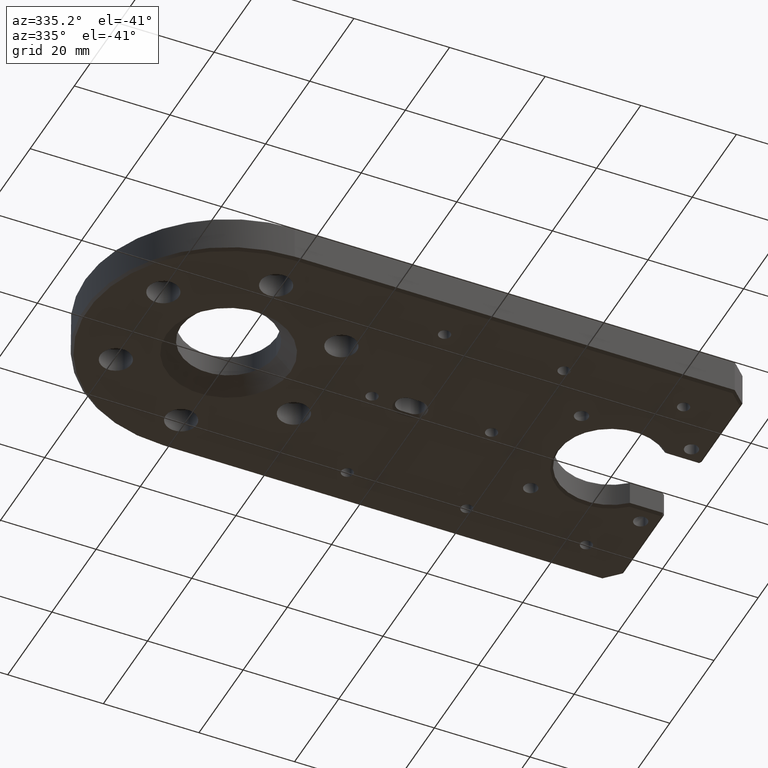
[diagram: clean part render]
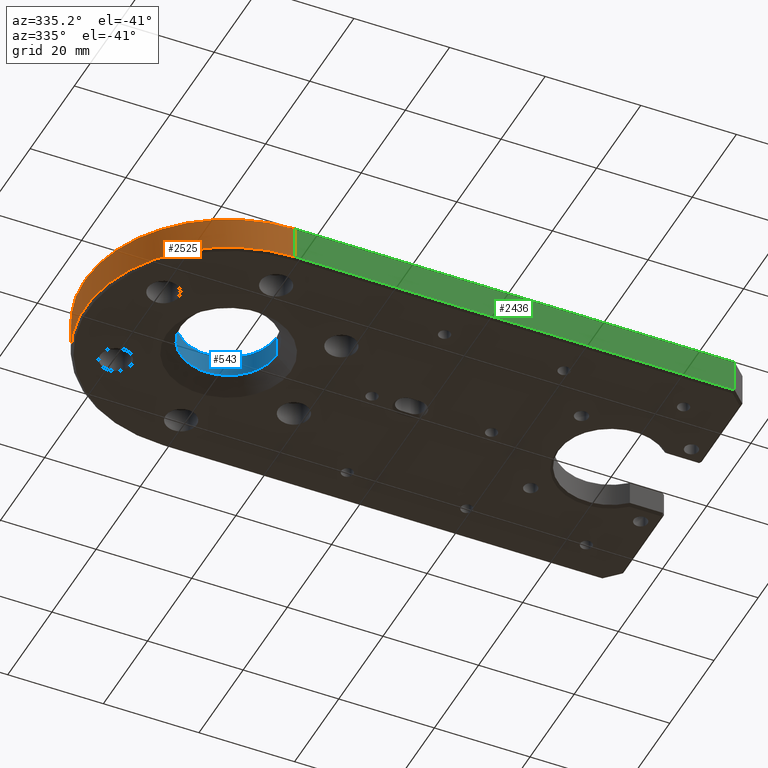
[diagram: same view with three faces highlighted in distinct colors, each labeled with its STEP entity id]
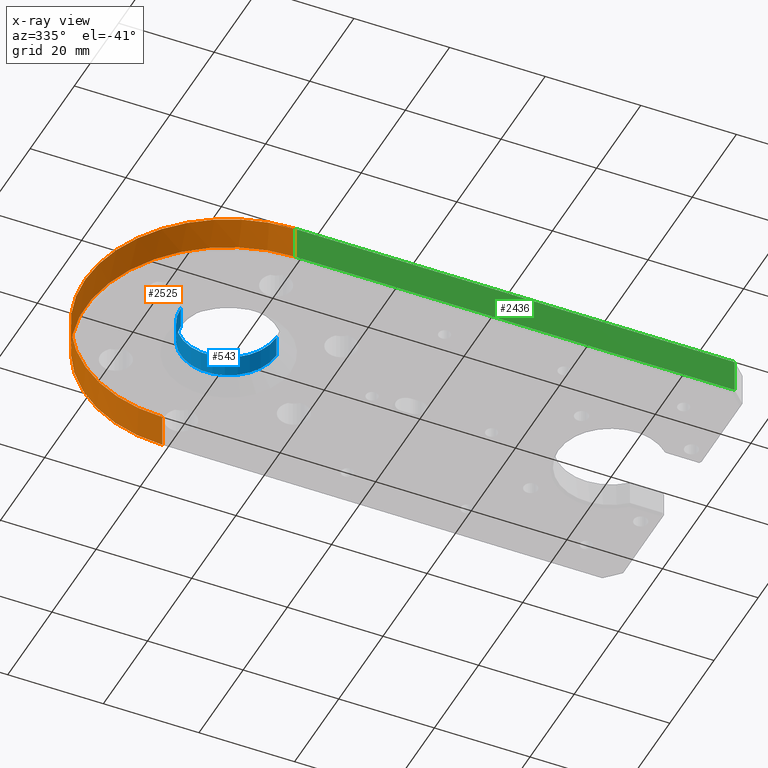
[diagram: x-ray of the same camera — body ghosted, the three highlighted faces saturated]
A machine part, auxiliary view with three faces highlighted in distinct colors.
The next image is the same camera in x-ray (body ghosted, the three faces saturated) — at least one of them is partly hidden behind the body in this view.
Their STEP definitions:

[orange] entity #2525 — the highlighted cylindrical surface (partial cylindrical patch) has radius 30 mm, axis along (0, 0, 1).
#14 = EDGE_CURVE ( 'NONE', #3818, #3821, #2484, .T. ) ;
#93 = CARTESIAN_POINT ( 'NONE',  ( -5.510910596163088767E-15, -30.00000000000000000, -8.000000000000000000 ) ) ;
#117 = CIRCLE ( 'NONE', #2047, 30.00000000000000000 ) ;
#153 = CARTESIAN_POINT ( 'NONE',  ( 0.0000000000000000000, 0.0000000000000000000, -7.500000000000013323 ) ) ;
#363 = VERTEX_POINT ( 'NONE', #2757 ) ;
#376 = DIRECTION ( 'NONE',  ( 0.0000000000000000000, 0.0000000000000000000, 1.000000000000000000 ) ) ;
#411 = CARTESIAN_POINT ( 'NONE',  ( 1.836970198721029589E-15, 30.00000000000000000, -0.4999999999999865663 ) ) ;
#646 = CYLINDRICAL_SURFACE ( 'NONE', #1932, 30.00000000000000000 ) ;
#656 = VECTOR ( 'NONE', #3798, 1000.000000000000000 ) ;
#697 = ORIENTED_EDGE ( 'NONE', *, *, #2718, .T. ) ;
#769 = ORIENTED_EDGE ( 'NONE', *, *, #14, .T. ) ;
#933 = AXIS2_PLACEMENT_3D ( 'NONE', #3032, #2061, #4070 ) ;
#1067 = AXIS2_PLACEMENT_3D ( 'NONE', #153, #1512, #2860 ) ;
#1179 = ORIENTED_EDGE ( 'NONE', *, *, #1767, .F. ) ;
#1194 = ORIENTED_EDGE ( 'NONE', *, *, #1654, .T. ) ;
#1439 = EDGE_CURVE ( 'NONE', #3821, #3797, #3876, .T. ) ;
#1512 = DIRECTION ( 'NONE',  ( -0.0000000000000000000, -0.0000000000000000000, 1.000000000000000000 ) ) ;
#1654 = EDGE_CURVE ( 'NONE', #3797, #363, #1720, .T. ) ;
#1720 = CIRCLE ( 'NONE', #933, 30.00000000000000000 ) ;
#1752 = CARTESIAN_POINT ( 'NONE',  ( -5.510910596163088767E-15, -30.00000000000000000, -7.500000000000013323 ) ) ;
#1767 = EDGE_CURVE ( 'NONE', #3818, #3831, #2429, .T. ) ;
#1932 = AXIS2_PLACEMENT_3D ( 'NONE', #2076, #376, #2009 ) ;
#1990 = DIRECTION ( 'NONE',  ( 0.0000000000000000000, 0.0000000000000000000, -1.000000000000000000 ) ) ;
#2009 = DIRECTION ( 'NONE',  ( 1.000000000000000000, 0.0000000000000000000, 0.0000000000000000000 ) ) ;
#2047 = AXIS2_PLACEMENT_3D ( 'NONE', #4040, #1990, #3335 ) ;
#2061 = DIRECTION ( 'NONE',  ( 0.0000000000000000000, 0.0000000000000000000, -1.000000000000000000 ) ) ;
#2076 = CARTESIAN_POINT ( 'NONE',  ( 0.0000000000000000000, 0.0000000000000000000, -8.000000000000000000 ) ) ;
#2100 = EDGE_LOOP ( 'NONE', ( #2514, #1194, #697, #1179, #769 ) ) ;
#2373 = CARTESIAN_POINT ( 'NONE',  ( -5.510910596163088767E-15, -30.00000000000000000, -0.4999999999999865663 ) ) ;
#2413 = CARTESIAN_POINT ( 'NONE',  ( 1.836970198721029589E-15, 30.00000000000000000, -7.500000000000013323 ) ) ;
#2429 = LINE ( 'NONE', #2742, #656 ) ;
#2484 = CIRCLE ( 'NONE', #1067, 30.00000000000000000 ) ;
#2514 = ORIENTED_EDGE ( 'NONE', *, *, #1439, .T. ) ;
#2525 = ADVANCED_FACE ( 'NONE', ( #4404 ), #646, .T. ) ;
#2718 = EDGE_CURVE ( 'NONE', #363, #3831, #117, .T. ) ;
#2742 = CARTESIAN_POINT ( 'NONE',  ( 1.836970198721029589E-15, 30.00000000000000000, -8.000000000000000000 ) ) ;
#2757 = CARTESIAN_POINT ( 'NONE',  ( -30.00000000000000000, 0.0000000000000000000, -0.4999999999999865663 ) ) ;
#2860 = DIRECTION ( 'NONE',  ( 1.000000000000000000, 0.0000000000000000000, 0.0000000000000000000 ) ) ;
#3032 = CARTESIAN_POINT ( 'NONE',  ( 0.0000000000000000000, 0.0000000000000000000, -0.4999999999999865663 ) ) ;
#3186 = DIRECTION ( 'NONE',  ( 0.0000000000000000000, 0.0000000000000000000, 1.000000000000000000 ) ) ;
#3335 = DIRECTION ( 'NONE',  ( 1.000000000000000000, 0.0000000000000000000, 0.0000000000000000000 ) ) ;
#3797 = VERTEX_POINT ( 'NONE', #2373 ) ;
#3798 = DIRECTION ( 'NONE',  ( 0.0000000000000000000, 0.0000000000000000000, 1.000000000000000000 ) ) ;
#3818 = VERTEX_POINT ( 'NONE', #2413 ) ;
#3821 = VERTEX_POINT ( 'NONE', #1752 ) ;
#3831 = VERTEX_POINT ( 'NONE', #411 ) ;
#3876 = LINE ( 'NONE', #93, #3915 ) ;
#3915 = VECTOR ( 'NONE', #3186, 1000.000000000000000 ) ;
#4040 = CARTESIAN_POINT ( 'NONE',  ( 0.0000000000000000000, 0.0000000000000000000, -0.4999999999999865663 ) ) ;
#4070 = DIRECTION ( 'NONE',  ( 1.000000000000000000, 0.0000000000000000000, 0.0000000000000000000 ) ) ;
#4404 = FACE_OUTER_BOUND ( 'NONE', #2100, .T. ) ;

[blue] entity #543 — the highlighted cylindrical surface (partial cylindrical patch) has radius 10 mm, axis along (-0, -0, 1).
#77 = VERTEX_POINT ( 'NONE', #4303 ) ;
#259 = DIRECTION ( 'NONE',  ( 1.000000000000000000, 0.0000000000000000000, 0.0000000000000000000 ) ) ;
#344 = ORIENTED_EDGE ( 'NONE', *, *, #4414, .F. ) ;
#427 = DIRECTION ( 'NONE',  ( -0.0000000000000000000, -0.0000000000000000000, 1.000000000000000000 ) ) ;
#543 = ADVANCED_FACE ( 'NONE', ( #2170 ), #2192, .F. ) ;
#740 = VECTOR ( 'NONE', #1199, 1000.000000000000000 ) ;
#839 = CARTESIAN_POINT ( 'NONE',  ( 10.00000000000000000, 0.0000000000000000000, -8.000000000000000000 ) ) ;
#867 = CARTESIAN_POINT ( 'NONE',  ( -10.00000000000000000, 1.224646799147353256E-15, -8.000000000000000000 ) ) ;
#1007 = VERTEX_POINT ( 'NONE', #4258 ) ;
#1056 = VERTEX_POINT ( 'NONE', #3924 ) ;
#1129 = AXIS2_PLACEMENT_3D ( 'NONE', #1422, #2771, #1955 ) ;
#1135 = EDGE_CURVE ( 'NONE', #1691, #1007, #1142, .T. ) ;
#1142 = CIRCLE ( 'NONE', #3416, 10.00000000000000000 ) ;
#1199 = DIRECTION ( 'NONE',  ( -0.0000000000000000000, -0.0000000000000000000, 1.000000000000000000 ) ) ;
#1422 = CARTESIAN_POINT ( 'NONE',  ( 0.0000000000000000000, 0.0000000000000000000, -5.000000000000009770 ) ) ;
#1500 = DIRECTION ( 'NONE',  ( 1.000000000000000000, 0.0000000000000000000, 0.0000000000000000000 ) ) ;
#1691 = VERTEX_POINT ( 'NONE', #1750 ) ;
#1750 = CARTESIAN_POINT ( 'NONE',  ( 10.00000000000000000, 0.0000000000000000000, -0.4999999999999882871 ) ) ;
#1835 = CARTESIAN_POINT ( 'NONE',  ( 0.0000000000000000000, 0.0000000000000000000, -8.000000000000000000 ) ) ;
#1955 = DIRECTION ( 'NONE',  ( 1.000000000000000000, 0.0000000000000000000, 0.0000000000000000000 ) ) ;
#2170 = FACE_OUTER_BOUND ( 'NONE', #3717, .T. ) ;
#2192 = CYLINDRICAL_SURFACE ( 'NONE', #3885, 10.00000000000000000 ) ;
#2219 = DIRECTION ( 'NONE',  ( -0.0000000000000000000, -0.0000000000000000000, 1.000000000000000000 ) ) ;
#2614 = EDGE_CURVE ( 'NONE', #77, #1056, #3049, .T. ) ;
#2682 = CARTESIAN_POINT ( 'NONE',  ( 0.0000000000000000000, 0.0000000000000000000, -0.4999999999999882871 ) ) ;
#2771 = DIRECTION ( 'NONE',  ( -0.0000000000000000000, -0.0000000000000000000, -1.000000000000000000 ) ) ;
#2867 = ORIENTED_EDGE ( 'NONE', *, *, #1135, .T. ) ;
#3049 = CIRCLE ( 'NONE', #1129, 10.00000000000000000 ) ;
#3096 = ORIENTED_EDGE ( 'NONE', *, *, #3472, .T. ) ;
#3318 = ORIENTED_EDGE ( 'NONE', *, *, #2614, .T. ) ;
#3351 = DIRECTION ( 'NONE',  ( 0.0000000000000000000, 0.0000000000000000000, 1.000000000000000000 ) ) ;
#3416 = AXIS2_PLACEMENT_3D ( 'NONE', #2682, #3351, #259 ) ;
#3472 = EDGE_CURVE ( 'NONE', #1056, #1691, #3878, .T. ) ;
#3717 = EDGE_LOOP ( 'NONE', ( #344, #3318, #3096, #2867 ) ) ;
#3878 = LINE ( 'NONE', #839, #4243 ) ;
#3885 = AXIS2_PLACEMENT_3D ( 'NONE', #1835, #427, #1500 ) ;
#3924 = CARTESIAN_POINT ( 'NONE',  ( 10.00000000000000000, 0.0000000000000000000, -5.000000000000009770 ) ) ;
#4243 = VECTOR ( 'NONE', #2219, 1000.000000000000000 ) ;
#4258 = CARTESIAN_POINT ( 'NONE',  ( -10.00000000000000000, 1.224646799147353256E-15, -0.4999999999999882871 ) ) ;
#4262 = LINE ( 'NONE', #867, #740 ) ;
#4303 = CARTESIAN_POINT ( 'NONE',  ( -10.00000000000000000, 1.224646799147353256E-15, -5.000000000000009770 ) ) ;
#4414 = EDGE_CURVE ( 'NONE', #77, #1007, #4262, .T. ) ;

[green] entity #2436 — the highlighted planar face has unit normal (0, -1, 0).
#51 = AXIS2_PLACEMENT_3D ( 'NONE', #244, #1733, #3723 ) ;
#93 = CARTESIAN_POINT ( 'NONE',  ( -5.510910596163088767E-15, -30.00000000000000000, -8.000000000000000000 ) ) ;
#146 = VECTOR ( 'NONE', #3365, 1000.000000000000000 ) ;
#244 = CARTESIAN_POINT ( 'NONE',  ( 95.00000000000004263, -30.00000000000000000, -8.000000000000000000 ) ) ;
#245 = LINE ( 'NONE', #2933, #1047 ) ;
#381 = ORIENTED_EDGE ( 'NONE', *, *, #2985, .T. ) ;
#404 = EDGE_CURVE ( 'NONE', #2226, #3797, #3433, .T. ) ;
#465 = ORIENTED_EDGE ( 'NONE', *, *, #2736, .T. ) ;
#991 = EDGE_LOOP ( 'NONE', ( #465, #2752, #4413, #381 ) ) ;
#1047 = VECTOR ( 'NONE', #1244, 1000.000000000000000 ) ;
#1127 = LINE ( 'NONE', #1871, #1246 ) ;
#1244 = DIRECTION ( 'NONE',  ( 0.0000000000000000000, 0.0000000000000000000, 1.000000000000000000 ) ) ;
#1246 = VECTOR ( 'NONE', #3216, 1000.000000000000000 ) ;
#1439 = EDGE_CURVE ( 'NONE', #3821, #3797, #3876, .T. ) ;
#1656 = CARTESIAN_POINT ( 'NONE',  ( 95.00000000000004263, -30.00000000000000000, -0.4999999999999865663 ) ) ;
#1733 = DIRECTION ( 'NONE',  ( 0.0000000000000000000, -1.000000000000000000, 0.0000000000000000000 ) ) ;
#1752 = CARTESIAN_POINT ( 'NONE',  ( -5.510910596163088767E-15, -30.00000000000000000, -7.500000000000013323 ) ) ;
#1871 = CARTESIAN_POINT ( 'NONE',  ( 92.00000000000004263, -30.00000000000000000, -7.500000000000013323 ) ) ;
#1948 = PLANE ( 'NONE',  #51 ) ;
#2226 = VERTEX_POINT ( 'NONE', #2491 ) ;
#2269 = FACE_OUTER_BOUND ( 'NONE', #991, .T. ) ;
#2373 = CARTESIAN_POINT ( 'NONE',  ( -5.510910596163088767E-15, -30.00000000000000000, -0.4999999999999865663 ) ) ;
#2436 = ADVANCED_FACE ( 'NONE', ( #2269 ), #1948, .T. ) ;
#2491 = CARTESIAN_POINT ( 'NONE',  ( 92.00000000000004263, -30.00000000000000000, -0.5000000000000029976 ) ) ;
#2736 = EDGE_CURVE ( 'NONE', #3935, #2226, #245, .T. ) ;
#2752 = ORIENTED_EDGE ( 'NONE', *, *, #404, .T. ) ;
#2895 = CARTESIAN_POINT ( 'NONE',  ( 92.00000000000004263, -30.00000000000000000, -7.500000000000015987 ) ) ;
#2933 = CARTESIAN_POINT ( 'NONE',  ( 92.00000000000004263, -30.00000000000000000, -8.000000000000000000 ) ) ;
#2985 = EDGE_CURVE ( 'NONE', #3821, #3935, #1127, .T. ) ;
#3186 = DIRECTION ( 'NONE',  ( 0.0000000000000000000, 0.0000000000000000000, 1.000000000000000000 ) ) ;
#3216 = DIRECTION ( 'NONE',  ( 1.000000000000000000, 0.0000000000000000000, -0.0000000000000000000 ) ) ;
#3365 = DIRECTION ( 'NONE',  ( -1.000000000000000000, 0.0000000000000000000, 0.0000000000000000000 ) ) ;
#3433 = LINE ( 'NONE', #1656, #146 ) ;
#3723 = DIRECTION ( 'NONE',  ( 0.0000000000000000000, -0.0000000000000000000, -1.000000000000000000 ) ) ;
#3797 = VERTEX_POINT ( 'NONE', #2373 ) ;
#3821 = VERTEX_POINT ( 'NONE', #1752 ) ;
#3876 = LINE ( 'NONE', #93, #3915 ) ;
#3915 = VECTOR ( 'NONE', #3186, 1000.000000000000000 ) ;
#3935 = VERTEX_POINT ( 'NONE', #2895 ) ;
#4413 = ORIENTED_EDGE ( 'NONE', *, *, #1439, .F. ) ;